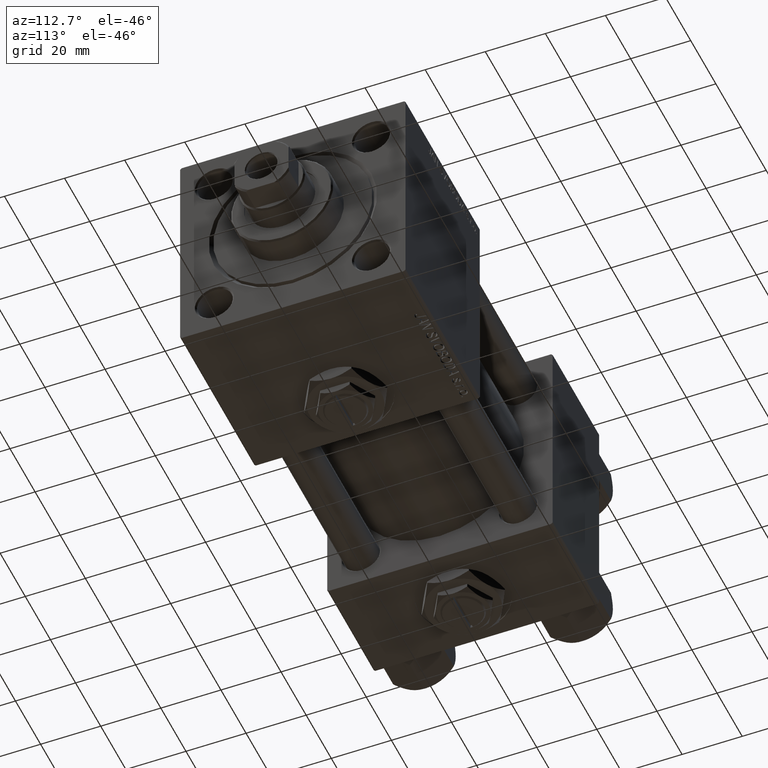
[diagram: clean part render]
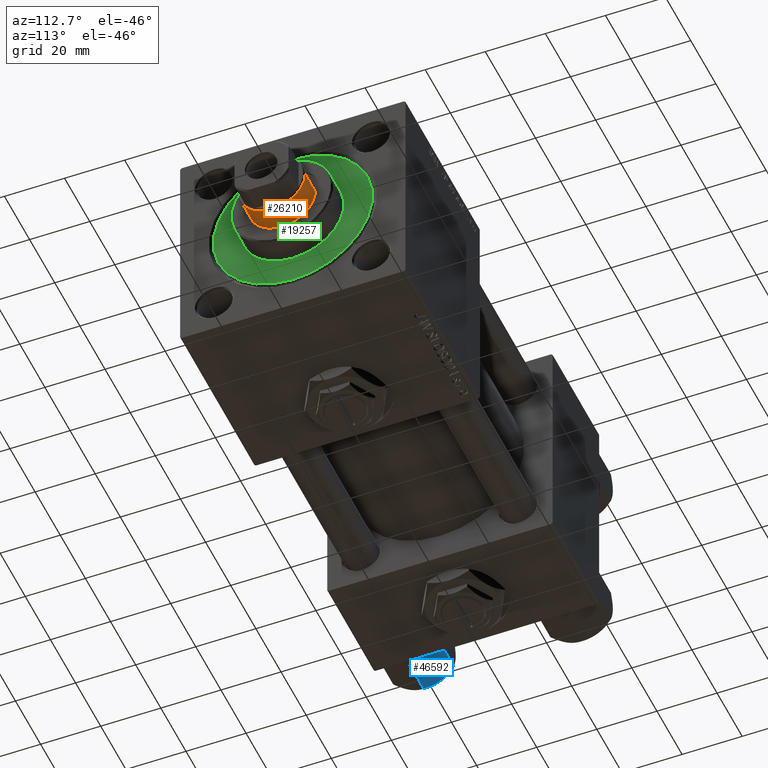
[diagram: same view with three faces highlighted in distinct colors, each labeled with its STEP entity id]
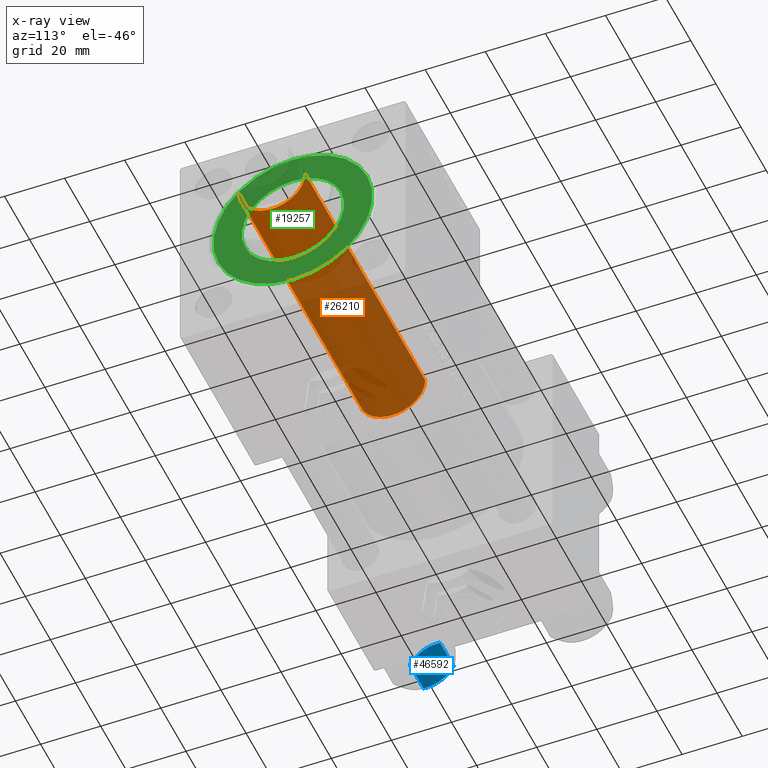
[diagram: x-ray of the same camera — body ghosted, the three highlighted faces saturated]
A machine part, auxiliary view with three faces highlighted in distinct colors.
The next image is the same camera in x-ray (body ghosted, the three faces saturated) — at least one of them is partly hidden behind the body in this view.
Their STEP definitions:

[orange] entity #26210 — the highlighted cylindrical surface (edge-blend (fillet) strip) has radius 11 mm, axis along (-1, 0, 0).
#5173 = CARTESIAN_POINT ( 'NONE',  ( 11.00000000000000000, 1.347111479062088405E-15, 133.5000000000000000 ) ) ;
#5668 = DIRECTION ( 'NONE',  ( -0.000000000000000000, -0.000000000000000000, -1.000000000000000000 ) ) ;
#7080 = CARTESIAN_POINT ( 'NONE',  ( -11.00000000000000000, 0.000000000000000000, 133.5000000000000000 ) ) ;
#9112 = CYLINDRICAL_SURFACE ( 'NONE', #44207, 11.00000000000000000 ) ;
#9632 = FACE_OUTER_BOUND ( 'NONE', #34904, .T. ) ;
#10704 = VERTEX_POINT ( 'NONE', #45007 ) ;
#11372 = ORIENTED_EDGE ( 'NONE', *, *, #25269, .T. ) ;
#11875 = DIRECTION ( 'NONE',  ( 0.000000000000000000, 0.000000000000000000, 1.000000000000000000 ) ) ;
#13724 = ORIENTED_EDGE ( 'NONE', *, *, #47487, .T. ) ;
#16168 = CARTESIAN_POINT ( 'NONE',  ( -11.00000000000000000, 0.000000000000000000, 38.00000000000000000 ) ) ;
#17813 = ORIENTED_EDGE ( 'NONE', *, *, #50229, .T. ) ;
#19137 = VERTEX_POINT ( 'NONE', #5173 ) ;
#20550 = AXIS2_PLACEMENT_3D ( 'NONE', #39864, #11875, #31674 ) ;
#23165 = CARTESIAN_POINT ( 'NONE',  ( -11.00000000000000000, 0.000000000000000000, 134.0000000000000000 ) ) ;
#23995 = VERTEX_POINT ( 'NONE', #16168 ) ;
#24374 = CIRCLE ( 'NONE', #45462, 11.00000000000000000 ) ;
#25269 = EDGE_CURVE ( 'NONE', #10704, #23995, #33222, .T. ) ;
#25386 = CARTESIAN_POINT ( 'NONE',  ( 0.000000000000000000, 0.000000000000000000, 133.5000000000000000 ) ) ;
#25753 = LINE ( 'NONE', #34687, #43843 ) ;
#26210 = ADVANCED_FACE ( 'NONE', ( #9632 ), #9112, .T. ) ;
#26264 = DIRECTION ( 'NONE',  ( -1.000000000000000000, 0.000000000000000000, 0.000000000000000000 ) ) ;
#27540 = EDGE_CURVE ( 'NONE', #36866, #23995, #43230, .T. ) ;
#31674 = DIRECTION ( 'NONE',  ( 1.000000000000000000, 0.000000000000000000, 0.000000000000000000 ) ) ;
#33222 = CIRCLE ( 'NONE', #20550, 11.00000000000000000 ) ;
#33921 = CARTESIAN_POINT ( 'NONE',  ( 0.000000000000000000, 0.000000000000000000, 134.0000000000000000 ) ) ;
#34687 = CARTESIAN_POINT ( 'NONE',  ( 11.00000000000000000, 1.347111479062088405E-15, 134.0000000000000000 ) ) ;
#34904 = EDGE_LOOP ( 'NONE', ( #13724, #17813, #11372, #47569 ) ) ;
#36727 = DIRECTION ( 'NONE',  ( 1.000000000000000000, 0.000000000000000000, 0.000000000000000000 ) ) ;
#36866 = VERTEX_POINT ( 'NONE', #7080 ) ;
#37522 = DIRECTION ( 'NONE',  ( 0.000000000000000000, 0.000000000000000000, -1.000000000000000000 ) ) ;
#39261 = DIRECTION ( 'NONE',  ( -0.000000000000000000, -0.000000000000000000, -1.000000000000000000 ) ) ;
#39864 = CARTESIAN_POINT ( 'NONE',  ( 0.000000000000000000, 0.000000000000000000, 38.00000000000000000 ) ) ;
#43230 = LINE ( 'NONE', #23165, #46816 ) ;
#43843 = VECTOR ( 'NONE', #50803, 1000.000000000000000 ) ;
#44207 = AXIS2_PLACEMENT_3D ( 'NONE', #33921, #5668, #26264 ) ;
#45007 = CARTESIAN_POINT ( 'NONE',  ( 11.00000000000000000, 1.347111479062088405E-15, 38.00000000000000000 ) ) ;
#45462 = AXIS2_PLACEMENT_3D ( 'NONE', #25386, #37522, #36727 ) ;
#46816 = VECTOR ( 'NONE', #39261, 1000.000000000000000 ) ;
#47487 = EDGE_CURVE ( 'NONE', #36866, #19137, #24374, .T. ) ;
#47569 = ORIENTED_EDGE ( 'NONE', *, *, #27540, .F. ) ;
#50229 = EDGE_CURVE ( 'NONE', #19137, #10704, #25753, .T. ) ;
#50803 = DIRECTION ( 'NONE',  ( -0.000000000000000000, -0.000000000000000000, -1.000000000000000000 ) ) ;

[blue] entity #46592 — the highlighted planar face has unit normal (-0, -0.5, 0.866).
#933 = CARTESIAN_POINT ( 'NONE',  ( 6.265018354709775750, -9.275100283241444643, -12.89823354668504507 ) ) ;
#1236 = B_SPLINE_CURVE_WITH_KNOTS ( 'NONE', 3,
 ( #28661, #36317, #13069, #12273, #933, #17301 ),
 .UNSPECIFIED., .F., .F.,
 ( 4, 2, 4 ),
 ( 0.006022845781655588975, 0.009013049135303635023, 0.01200325248895167674 ),
 .UNSPECIFIED. ) ;
#1506 = ORIENTED_EDGE ( 'NONE', *, *, #25909, .F. ) ;
#2151 = CARTESIAN_POINT ( 'NONE',  ( 11.16498164529022574, -0.7881149087337312453, -1.101766453314952487 ) ) ;
#2226 = CARTESIAN_POINT ( 'NONE',  ( 9.974696630283194310, -2.849749030213795997, -13.69973261901326289 ) ) ;
#2388 = AXIS2_PLACEMENT_3D ( 'NONE', #25571, #6258, #9971 ) ;
#2498 = VERTEX_POINT ( 'NONE', #5419 ) ;
#5419 = CARTESIAN_POINT ( 'NONE',  ( 8.715000000000001634, -5.031607595987590997, -14.00000000000000000 ) ) ;
#5684 = CARTESIAN_POINT ( 'NONE',  ( 8.969430103550385169, -4.590921729663315354, -14.00000000000000533 ) ) ;
#5738 = CARTESIAN_POINT ( 'NONE',  ( 8.202333004087897450, -5.919572880271052995, -0.03994118060690592109 ) ) ;
#6258 = DIRECTION ( 'NONE',  ( -0.8660254037844385966, 0.5000000000000002220, 0.000000000000000000 ) ) ;
#6387 = EDGE_CURVE ( 'NONE', #12770, #46497, #22414, .T. ) ;
#6990 = VERTEX_POINT ( 'NONE', #25701 ) ;
#8117 = DIRECTION ( 'NONE',  ( -0.000000000000000000, -0.000000000000000000, 1.000000000000000000 ) ) ;
#8305 = ORIENTED_EDGE ( 'NONE', *, *, #10427, .F. ) ;
#9901 = CARTESIAN_POINT ( 'NONE',  ( 11.62000000000000099, -1.795242522838921761E-15, -12.44321519197518455 ) ) ;
#9971 = DIRECTION ( 'NONE',  ( -0.5000000000000001110, -0.8660254037844384856, 0.000000000000000000 ) ) ;
#10427 = EDGE_CURVE ( 'NONE', #42881, #23524, #47782, .T. ) ;
#10592 = CARTESIAN_POINT ( 'NONE',  ( 9.220295946303432189, -4.156409344131454020, 3.521962994683380021E-15 ) ) ;
#11588 = DIRECTION ( 'NONE',  ( -0.000000000000000000, -0.000000000000000000, 1.000000000000000000 ) ) ;
#12273 = CARTESIAN_POINT ( 'NONE',  ( 6.733375043383497349, -8.463882702393844326, -13.28854452935655139 ) ) ;
#12770 = VERTEX_POINT ( 'NONE', #23156 ) ;
#13050 = VECTOR ( 'NONE', #8117, 1000.000000000000000 ) ;
#13069 = CARTESIAN_POINT ( 'NONE',  ( 7.713000053756304375, -6.767122412062953174, -13.84547602999601601 ) ) ;
#14170 = CARTESIAN_POINT ( 'NONE',  ( 7.700834831386344170, -6.788193195293096061, -0.1903979688073396681 ) ) ;
#15875 = EDGE_CURVE ( 'NONE', #6990, #2498, #48780, .T. ) ;
#17301 = CARTESIAN_POINT ( 'NONE',  ( 5.810000000000000497, -10.06321519197517667, -12.44321519197518633 ) ) ;
#17369 = CARTESIAN_POINT ( 'NONE',  ( 8.460569896449618099, -5.472293462311865753, 3.427848222766236415E-15 ) ) ;
#17631 = CARTESIAN_POINT ( 'NONE',  ( 6.265545725125285514, -9.274186850887382150, -1.101239082899530430 ) ) ;
#18596 = CARTESIAN_POINT ( 'NONE',  ( 9.729165168613654657, -3.275021996682085490, -13.80960203119266083 ) ) ;
#20039 = CARTESIAN_POINT ( 'NONE',  ( 5.810000000000000497, -10.06321519197517667, -14.00000000000000000 ) ) ;
#21381 = EDGE_CURVE ( 'NONE', #2498, #42881, #1236, .T. ) ;
#22113 = CARTESIAN_POINT ( 'NONE',  ( 5.810000000000000497, -10.06321519197517667, -1.556784808024811895 ) ) ;
#22233 = CARTESIAN_POINT ( 'NONE',  ( 9.716999946243698005, -3.296092779912227932, -0.1545239700039822972 ) ) ;
#22414 = B_SPLINE_CURVE_WITH_KNOTS ( 'NONE', 3,
 ( #23001, #10592, #22233, #39102, #2151, #34372 ),
 .UNSPECIFIED., .F., .F.,
 ( 4, 2, 4 ),
 ( 0.006022845781655586372, 0.009013049135303633289, 0.01200325248895168020 ),
 .UNSPECIFIED. ) ;
#23001 = CARTESIAN_POINT ( 'NONE',  ( 8.715000000000003411, -5.031607595987592774, 0.000000000000000000 ) ) ;
#23156 = CARTESIAN_POINT ( 'NONE',  ( 8.715000000000003411, -5.031607595987592774, 0.000000000000000000 ) ) ;
#23524 = VERTEX_POINT ( 'NONE', #49993 ) ;
#24257 = EDGE_LOOP ( 'NONE', ( #47060, #41089, #49348, #1506, #8305, #40262 ) ) ;
#25089 = FACE_OUTER_BOUND ( 'NONE', #24257, .T. ) ;
#25571 = CARTESIAN_POINT ( 'NONE',  ( 11.62000000000000099, -1.813166800014576593E-15, -14.00000000000000000 ) ) ;
#25701 = CARTESIAN_POINT ( 'NONE',  ( 11.62000000000000099, -1.795242522838921761E-15, -12.44321519197518455 ) ) ;
#25909 = EDGE_CURVE ( 'NONE', #23524, #12770, #42605, .T. ) ;
#26525 = CARTESIAN_POINT ( 'NONE',  ( 8.715000000000001634, -5.031607595987590997, -14.00000000000000000 ) ) ;
#26631 = EDGE_CURVE ( 'NONE', #6990, #46497, #43783, .T. ) ;
#28661 = CARTESIAN_POINT ( 'NONE',  ( 8.715000000000001634, -5.031607595987590997, -14.00000000000000000 ) ) ;
#29510 = CARTESIAN_POINT ( 'NONE',  ( 6.731401448974991375, -8.467301068182914392, -0.7141438259524641730 ) ) ;
#29965 = CARTESIAN_POINT ( 'NONE',  ( 10.69859855102500745, -1.595914123792264050, -13.28585617404753094 ) ) ;
#34372 = CARTESIAN_POINT ( 'NONE',  ( 11.62000000000000099, -1.924525737834042474E-15, -1.556784808024813893 ) ) ;
#34931 = CARTESIAN_POINT ( 'NONE',  ( 5.810000000000000497, -10.06321519197517667, -12.44321519197518633 ) ) ;
#35600 = CARTESIAN_POINT ( 'NONE',  ( 11.62000000000000099, -1.813166800014576593E-15, -14.00000000000000000 ) ) ;
#36317 = CARTESIAN_POINT ( 'NONE',  ( 8.209704053696569304, -5.906805847843729751, -14.00000000000000711 ) ) ;
#38404 = CARTESIAN_POINT ( 'NONE',  ( 11.16445427487471775, -0.7890283410877989567, -12.89876091710046424 ) ) ;
#39102 = CARTESIAN_POINT ( 'NONE',  ( 10.69662495661650503, -1.599332489581334560, -0.7114554706434483844 ) ) ;
#40262 = ORIENTED_EDGE ( 'NONE', *, *, #21381, .F. ) ;
#40927 = CARTESIAN_POINT ( 'NONE',  ( 11.62000000000000099, -1.924525737834042474E-15, -1.556784808024813893 ) ) ;
#41089 = ORIENTED_EDGE ( 'NONE', *, *, #26631, .T. ) ;
#41259 = VECTOR ( 'NONE', #11588, 1000.000000000000000 ) ;
#42182 = CARTESIAN_POINT ( 'NONE',  ( 7.455303369716807182, -7.213466161761383333, -0.3002673809867365540 ) ) ;
#42252 = PLANE ( 'NONE',  #2388 ) ;
#42432 = CARTESIAN_POINT ( 'NONE',  ( 8.715000000000003411, -5.031607595987592774, 0.000000000000000000 ) ) ;
#42605 = B_SPLINE_CURVE_WITH_KNOTS ( 'NONE', 3,
 ( #22113, #17631, #29510, #42182, #14170, #5738, #17369, #42432 ),
 .UNSPECIFIED., .F., .F.,
 ( 4, 2, 2, 4 ),
 ( 2.544312114902182352E-07, 0.003011550106433539056, 0.004517197944044561847, 0.006022845781655586372 ),
 .UNSPECIFIED. ) ;
#42881 = VERTEX_POINT ( 'NONE', #34931 ) ;
#43783 = LINE ( 'NONE', #35600, #13050 ) ;
#46497 = VERTEX_POINT ( 'NONE', #40927 ) ;
#46592 = ADVANCED_FACE ( 'NONE', ( #25089 ), #42252, .F. ) ;
#47060 = ORIENTED_EDGE ( 'NONE', *, *, #15875, .F. ) ;
#47782 = LINE ( 'NONE', #20039, #41259 ) ;
#48780 = B_SPLINE_CURVE_WITH_KNOTS ( 'NONE', 3,
 ( #9901, #38404, #29965, #2226, #18596, #50055, #5684, #26525 ),
 .UNSPECIFIED., .F., .F.,
 ( 4, 2, 2, 4 ),
 ( 2.544312114905217906E-07, 0.003011550106433539490, 0.004517197944044564449, 0.006022845781655588975 ),
 .UNSPECIFIED. ) ;
#49348 = ORIENTED_EDGE ( 'NONE', *, *, #6387, .F. ) ;
#49993 = CARTESIAN_POINT ( 'NONE',  ( 5.810000000000000497, -10.06321519197517667, -1.556784808024811895 ) ) ;
#50055 = CARTESIAN_POINT ( 'NONE',  ( 9.227666995912104042, -4.143642311704127223, -13.96005881939309212 ) ) ;

[green] entity #19257 — the highlighted planar face has unit normal (1, 0, 0).
#1733 = DIRECTION ( 'NONE',  ( 1.000000000000000000, 0.000000000000000000, -0.000000000000000000 ) ) ;
#3217 = EDGE_CURVE ( 'NONE', #42017, #30923, #47821, .T. ) ;
#5811 = DIRECTION ( 'NONE',  ( 0.000000000000000000, 0.000000000000000000, 1.000000000000000000 ) ) ;
#8190 = DIRECTION ( 'NONE',  ( 1.000000000000000000, 0.000000000000000000, 0.000000000000000000 ) ) ;
#10109 = VERTEX_POINT ( 'NONE', #16686 ) ;
#10409 = FACE_BOUND ( 'NONE', #34134, .T. ) ;
#11537 = CIRCLE ( 'NONE', #31774, 26.50000000000000355 ) ;
#12154 = CARTESIAN_POINT ( 'NONE',  ( 0.000000000000000000, 0.000000000000000000, 28.69999999999999929 ) ) ;
#15974 = DIRECTION ( 'NONE',  ( 0.000000000000000000, 0.000000000000000000, 1.000000000000000000 ) ) ;
#16439 = CARTESIAN_POINT ( 'NONE',  ( -17.00000000000000000, 0.000000000000000000, 28.69999999999999929 ) ) ;
#16686 = CARTESIAN_POINT ( 'NONE',  ( -26.50000000000000355, 0.000000000000000000, 28.69999999999999929 ) ) ;
#18238 = ORIENTED_EDGE ( 'NONE', *, *, #3217, .F. ) ;
#18334 = EDGE_LOOP ( 'NONE', ( #19513, #25824 ) ) ;
#18468 = CARTESIAN_POINT ( 'NONE',  ( 0.000000000000000000, 0.000000000000000000, 28.69999999999999929 ) ) ;
#18783 = EDGE_CURVE ( 'NONE', #27420, #10109, #33113, .T. ) ;
#19257 = ADVANCED_FACE ( 'NONE', ( #10409, #38406 ), #26526, .T. ) ;
#19513 = ORIENTED_EDGE ( 'NONE', *, *, #42531, .T. ) ;
#19996 = AXIS2_PLACEMENT_3D ( 'NONE', #30223, #22563, #33940 ) ;
#22563 = DIRECTION ( 'NONE',  ( 0.000000000000000000, 0.000000000000000000, 1.000000000000000000 ) ) ;
#22842 = EDGE_CURVE ( 'NONE', #30923, #42017, #37488, .T. ) ;
#25824 = ORIENTED_EDGE ( 'NONE', *, *, #18783, .T. ) ;
#26526 = PLANE ( 'NONE',  #36493 ) ;
#27420 = VERTEX_POINT ( 'NONE', #31585 ) ;
#28193 = AXIS2_PLACEMENT_3D ( 'NONE', #12154, #28267, #8190 ) ;
#28267 = DIRECTION ( 'NONE',  ( 0.000000000000000000, 0.000000000000000000, 1.000000000000000000 ) ) ;
#30223 = CARTESIAN_POINT ( 'NONE',  ( 0.000000000000000000, 0.000000000000000000, 28.69999999999999929 ) ) ;
#30923 = VERTEX_POINT ( 'NONE', #34210 ) ;
#31585 = CARTESIAN_POINT ( 'NONE',  ( 26.50000000000000355, 3.245314017740486554E-15, 28.69999999999999929 ) ) ;
#31774 = AXIS2_PLACEMENT_3D ( 'NONE', #31803, #15974, #36571 ) ;
#31803 = CARTESIAN_POINT ( 'NONE',  ( 0.000000000000000000, 0.000000000000000000, 28.69999999999999929 ) ) ;
#33113 = CIRCLE ( 'NONE', #48298, 26.50000000000000355 ) ;
#33940 = DIRECTION ( 'NONE',  ( 1.000000000000000000, 0.000000000000000000, 0.000000000000000000 ) ) ;
#34134 = EDGE_LOOP ( 'NONE', ( #18238, #37139 ) ) ;
#34210 = CARTESIAN_POINT ( 'NONE',  ( 17.00000000000000000, 2.081899558550500280E-15, 28.69999999999999929 ) ) ;
#36493 = AXIS2_PLACEMENT_3D ( 'NONE', #42128, #50566, #1733 ) ;
#36571 = DIRECTION ( 'NONE',  ( 1.000000000000000000, 0.000000000000000000, 0.000000000000000000 ) ) ;
#37139 = ORIENTED_EDGE ( 'NONE', *, *, #22842, .F. ) ;
#37488 = CIRCLE ( 'NONE', #28193, 17.00000000000000000 ) ;
#38406 = FACE_OUTER_BOUND ( 'NONE', #18334, .T. ) ;
#38788 = DIRECTION ( 'NONE',  ( 1.000000000000000000, 0.000000000000000000, 0.000000000000000000 ) ) ;
#42017 = VERTEX_POINT ( 'NONE', #16439 ) ;
#42128 = CARTESIAN_POINT ( 'NONE',  ( 0.000000000000000000, 0.000000000000000000, 28.69999999999999929 ) ) ;
#42531 = EDGE_CURVE ( 'NONE', #10109, #27420, #11537, .T. ) ;
#47821 = CIRCLE ( 'NONE', #19996, 17.00000000000000000 ) ;
#48298 = AXIS2_PLACEMENT_3D ( 'NONE', #18468, #5811, #38788 ) ;
#50566 = DIRECTION ( 'NONE',  ( 0.000000000000000000, 0.000000000000000000, 1.000000000000000000 ) ) ;